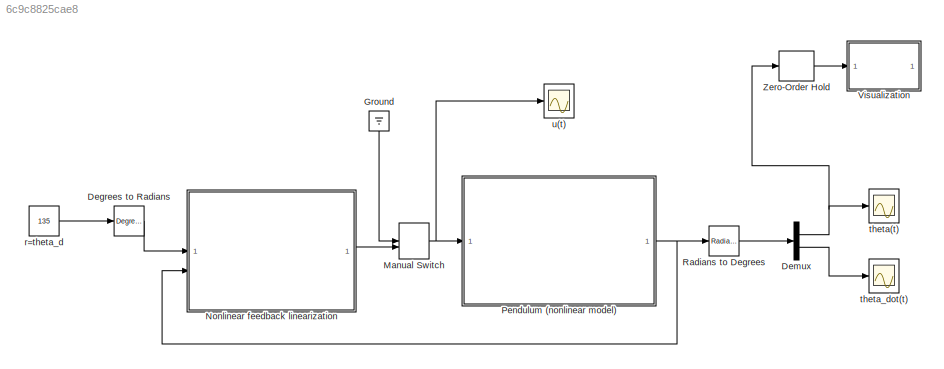
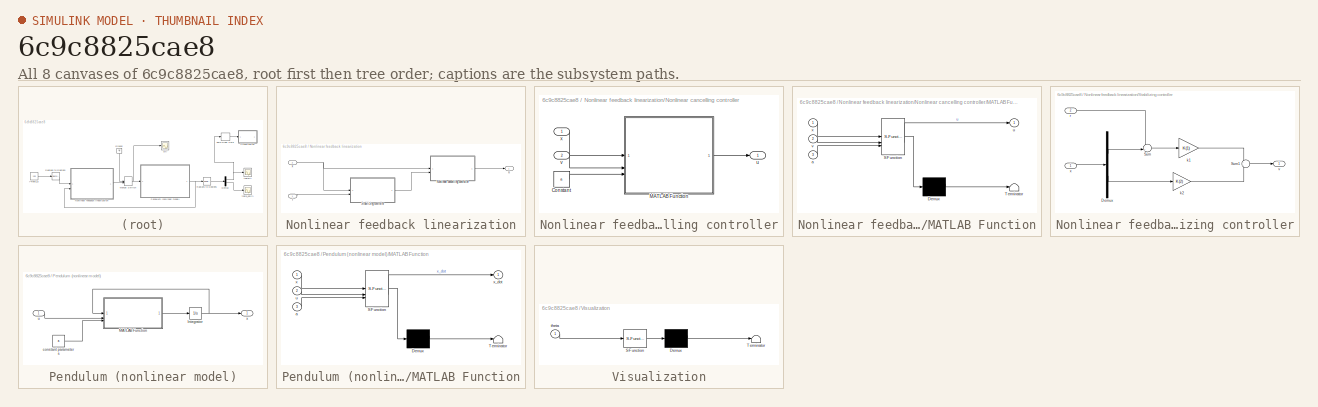
[diagram: thumbnail index - all 8 canvases of the model, root first then tree order]
MODEL slx_6c9c8825cae8
KIND model
CONFIG AbsTol = auto
CONFIG EnableMultiTasking = off
CONFIG FixedStep = 0.01
CONFIG MaxStep = auto
CONFIG MinStep = auto
CONFIG RelTol = 1e-3
CONFIG SampleTimeConstraint = Unconstrained
CONFIG SolverName = ode3
CONFIG StartTime = 0.0
CONFIG StopTime = 20
BLOCK [Reference] Degrees to Radians  REF=simulink_extras/Transformations/Degrees to
Radians
  SourceBlock = simulink_extras/Transformations/Degrees to\nRadians
  SourceType = DegreesToRadians
BLOCK [Demux] Demux
  Outputs = 2
BLOCK [Ground] Ground
  NameLocation = left
BLOCK [ManualSwitch] Manual Switch
BLOCK [SubSystem] Nonlinear feedback linearization
BLOCK [SubSystem] Nonlinear feedback linearization/Nonlinear cancelling controller
BLOCK [Constant] Nonlinear feedback linearization/Nonlinear cancelling controller/Constant
  Value = a
  VectorParams1D = off
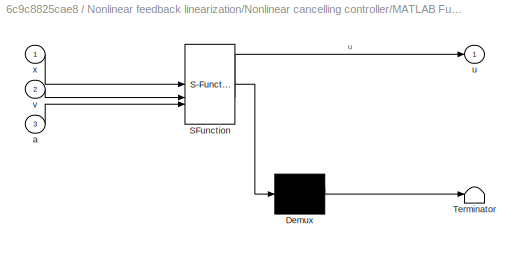
BLOCK [SubSystem] Nonlinear feedback linearization/Nonlinear cancelling controller/MATLAB Function
  ErrorFcn = Stateflow.Translate.translate
  PermitHierarchicalResolution = ExplicitOnly
  SFBlockType = MATLAB Function
  TreatAsAtomicUnit = on
BLOCK [Demux] Nonlinear feedback linearization/Nonlinear cancelling controller/MATLAB Function/ Demux 
  Outputs = 1
BLOCK [S-Function] Nonlinear feedback linearization/Nonlinear cancelling controller/MATLAB Function/ SFunction 
  EnableBusSupport = on
  FunctionName = sf_sfun
  PortCounts = [3 2]
  SFcnIsStateOwnerBlock = off
  SFunctionDeploymentMode = off
  Tag = Stateflow S-Function 1
BLOCK [Terminator] Nonlinear feedback linearization/Nonlinear cancelling controller/MATLAB Function/ Terminator 
BLOCK [Inport] Nonlinear feedback linearization/Nonlinear cancelling controller/MATLAB Function/a
  Port = 3
BLOCK [Outport] Nonlinear feedback linearization/Nonlinear cancelling controller/MATLAB Function/u
BLOCK [Inport] Nonlinear feedback linearization/Nonlinear cancelling controller/MATLAB Function/v
  Port = 2
BLOCK [Inport] Nonlinear feedback linearization/Nonlinear cancelling controller/MATLAB Function/x
BLOCK [Outport] Nonlinear feedback linearization/Nonlinear cancelling controller/u
BLOCK [Inport] Nonlinear feedback linearization/Nonlinear cancelling controller/v
  Port = 2
BLOCK [Inport] Nonlinear feedback linearization/Nonlinear cancelling controller/x
BLOCK [SubSystem] Nonlinear feedback linearization/Stabilizing controller
BLOCK [Demux] Nonlinear feedback linearization/Stabilizing controller/Demux
  Outputs = 2
BLOCK [Sum] Nonlinear feedback linearization/Stabilizing controller/Sum
  Inputs = -+|
BLOCK [Sum] Nonlinear feedback linearization/Stabilizing controller/Sum1
  Inputs = --
BLOCK [Gain] Nonlinear feedback linearization/Stabilizing controller/k1
  Gain = K(1)
BLOCK [Gain] Nonlinear feedback linearization/Stabilizing controller/k2
  Gain = K(2)
BLOCK [Inport] Nonlinear feedback linearization/Stabilizing controller/r
  Port = 2
BLOCK [Outport] Nonlinear feedback linearization/Stabilizing controller/v
BLOCK [Inport] Nonlinear feedback linearization/Stabilizing controller/x
BLOCK [Inport] Nonlinear feedback linearization/r
BLOCK [Outport] Nonlinear feedback linearization/u
BLOCK [Inport] Nonlinear feedback linearization/x
  Port = 2
BLOCK [SubSystem] Pendulum (nonlinear model)
BLOCK [Integrator] Pendulum (nonlinear model)/Integrator
  InitialCondition = [-pi/3;0]
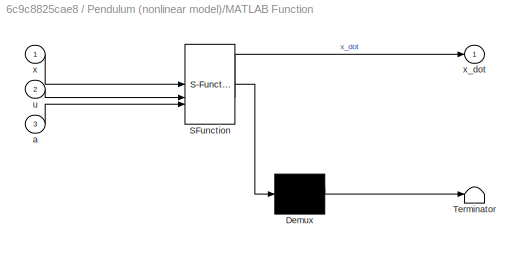
BLOCK [SubSystem] Pendulum (nonlinear model)/MATLAB Function
  ErrorFcn = Stateflow.Translate.translate
  PermitHierarchicalResolution = ExplicitOnly
  SFBlockType = MATLAB Function
  TreatAsAtomicUnit = on
BLOCK [Demux] Pendulum (nonlinear model)/MATLAB Function/ Demux 
  Outputs = 1
BLOCK [S-Function] Pendulum (nonlinear model)/MATLAB Function/ SFunction 
  EnableBusSupport = on
  FunctionName = sf_sfun
  PortCounts = [3 2]
  SFcnIsStateOwnerBlock = off
  SFunctionDeploymentMode = off
  Tag = Stateflow S-Function 2
BLOCK [Terminator] Pendulum (nonlinear model)/MATLAB Function/ Terminator 
BLOCK [Inport] Pendulum (nonlinear model)/MATLAB Function/a
  Port = 3
BLOCK [Inport] Pendulum (nonlinear model)/MATLAB Function/u
  Port = 2
BLOCK [Inport] Pendulum (nonlinear model)/MATLAB Function/x
BLOCK [Outport] Pendulum (nonlinear model)/MATLAB Function/x_dot
BLOCK [Constant] Pendulum (nonlinear model)/constant parameters
  Value = a
  VectorParams1D = off
BLOCK [Inport] Pendulum (nonlinear model)/u
BLOCK [Outport] Pendulum (nonlinear model)/x
BLOCK [Reference] Radians to Degrees  REF=simulink_extras/Transformations/Radians
to Degrees
  SourceBlock = simulink_extras/Transformations/Radians\nto Degrees
  SourceType = RadiansToDegrees
BLOCK [SubSystem] Visualization
  ErrorFcn = Stateflow.Translate.translate
  PermitHierarchicalResolution = ExplicitOnly
  SFBlockType = MATLAB Function
  TreatAsAtomicUnit = on
BLOCK [Demux] Visualization/ Demux 
  Outputs = 1
BLOCK [S-Function] Visualization/ SFunction 
  EnableBusSupport = on
  FunctionName = sf_sfun
  PortCounts = [1 1]
  SFcnIsStateOwnerBlock = off
  SFunctionDeploymentMode = off
  Tag = Stateflow S-Function 3
BLOCK [Terminator] Visualization/ Terminator 
BLOCK [Inport] Visualization/theta
BLOCK [ZeroOrderHold] Zero-Order Hold
  SampleTime = 0.1
BLOCK [Constant] r=theta_d
  Value = 135
BLOCK [Scope] theta(t)
  Floating = off
  NumInputPorts = 1
  ScopeSpecificationString = Simulink.scopes.TimeScopeBlockCfg('CurrentConfiguration', extmgr.ConfigurationSet(extmgr.Configuration('Core','General UI',true),extmgr.Configuration('Core','Source UI',true),extmgr.Configuration('Sources','WiredSimulink',true),extmgr.Configuration('Visuals','Time Domain',true,'SerializedDisplays',{struct('MinYLimReal','-84.375','MaxYLimReal','159.37499','YLabelReal','','MinYLimMag','0.00000','Max...<+1386ch>
BLOCK [Scope] theta_dot(t)
  Floating = off
  NumInputPorts = 1
  ScopeSpecificationString = Simulink.scopes.TimeScopeBlockCfg('CurrentConfiguration', extmgr.ConfigurationSet(extmgr.Configuration('Core','General UI',true),extmgr.Configuration('Core','Source UI',true),extmgr.Configuration('Sources','WiredSimulink',true,'DataLoggingVariableName','ScopeData1'),extmgr.Configuration('Visuals','Time Domain',true,'SerializedDisplays',{struct('MinYLimReal','-6.20383','MaxYLimReal','55.83447','YLa...<+1401ch>
BLOCK [Scope] u(t)
  Floating = off
  NumInputPorts = 1
  ScopeSpecificationString = Simulink.scopes.TimeScopeBlockCfg('CurrentConfiguration', extmgr.ConfigurationSet(extmgr.Configuration('Core','General UI',true),extmgr.Configuration('Core','Source UI',true),extmgr.Configuration('Sources','WiredSimulink',true,'DataLoggingVariableName','ScopeData1'),extmgr.Configuration('Visuals','Time Domain',true,'SerializedDisplays',{struct('MinYLimReal','50.11203','MaxYLimReal','521.9139','YLa...<+1424ch>
LINE Degrees to Radians:1 -> Nonlinear feedback linearization:1
NET Demux:1 -> Zero-Order Hold:1, theta(t):1
LINE Demux:2 -> theta_dot(t):1
LINE Ground:1 -> Manual Switch:1
NET Manual Switch:1 -> Pendulum (nonlinear model):1, u(t):1
LINE Nonlinear feedback linearization/Nonlinear cancelling controller/Constant:1 -> Nonlinear feedback linearization/Nonlinear cancelling controller/MATLAB Function:3
LINE Nonlinear feedback linearization/Nonlinear cancelling controller/MATLAB Function:1 -> Nonlinear feedback linearization/Nonlinear cancelling controller/u:1
LINE Nonlinear feedback linearization/Nonlinear cancelling controller/v:1 -> Nonlinear feedback linearization/Nonlinear cancelling controller/MATLAB Function:2
LINE Nonlinear feedback linearization/Nonlinear cancelling controller/x:1 -> Nonlinear feedback linearization/Nonlinear cancelling controller/MATLAB Function:1
LINE Nonlinear feedback linearization/Nonlinear cancelling controller:1 -> Nonlinear feedback linearization/u:1
LINE Nonlinear feedback linearization/Stabilizing controller/Demux:1 -> Nonlinear feedback linearization/Stabilizing controller/Sum:2
LINE Nonlinear feedback linearization/Stabilizing controller/Demux:2 -> Nonlinear feedback linearization/Stabilizing controller/k2:1
LINE Nonlinear feedback linearization/Stabilizing controller/Sum1:1 -> Nonlinear feedback linearization/Stabilizing controller/v:1
LINE Nonlinear feedback linearization/Stabilizing controller/Sum:1 -> Nonlinear feedback linearization/Stabilizing controller/k1:1
LINE Nonlinear feedback linearization/Stabilizing controller/k1:1 -> Nonlinear feedback linearization/Stabilizing controller/Sum1:1
LINE Nonlinear feedback linearization/Stabilizing controller/k2:1 -> Nonlinear feedback linearization/Stabilizing controller/Sum1:2
LINE Nonlinear feedback linearization/Stabilizing controller/r:1 -> Nonlinear feedback linearization/Stabilizing controller/Sum:1
LINE Nonlinear feedback linearization/Stabilizing controller/x:1 -> Nonlinear feedback linearization/Stabilizing controller/Demux:1
LINE Nonlinear feedback linearization/Stabilizing controller:1 -> Nonlinear feedback linearization/Nonlinear cancelling controller:2
LINE Nonlinear feedback linearization/r:1 -> Nonlinear feedback linearization/Stabilizing controller:2
NET Nonlinear feedback linearization/x:1 -> Nonlinear feedback linearization/Nonlinear cancelling controller:1, Nonlinear feedback linearization/Stabilizing controller:1
LINE Nonlinear feedback linearization:1 -> Manual Switch:2
NET Pendulum (nonlinear model)/Integrator:1 -> Pendulum (nonlinear model)/MATLAB Function:1, Pendulum (nonlinear model)/x:1
LINE Pendulum (nonlinear model)/MATLAB Function:1 -> Pendulum (nonlinear model)/Integrator:1
LINE Pendulum (nonlinear model)/constant parameters:1 -> Pendulum (nonlinear model)/MATLAB Function:3
LINE Pendulum (nonlinear model)/u:1 -> Pendulum (nonlinear model)/MATLAB Function:2
NET Pendulum (nonlinear model):1 -> Nonlinear feedback linearization:2, Radians to Degrees:1
LINE Radians to Degrees:1 -> Demux:1
LINE Zero-Order Hold:1 -> Visualization:1
LINE r=theta_d:1 -> Degrees to Radians:1
note: NET lines group one-source signal fan-out (src -> all destinations, sorted); 1:1 wires keep LINE
CHART Nonlinear feedback linearization/Nonlinear cancelling controller/MATLAB Function states=1 transitions=1
  STATE_LABEL 'eML_blk_kernel()'
  STATE_LABEL 'SCRIPT:\nfunction u = c_lin(x,v,a)\n\n% a is the vector of constant parameters\nm = a(1);\ng = a(2);\nl = a(3);\nd = a(4);\n\n% cancelling controller\nu = m*g*l*sin(x(1)) + d*x(2) + m*l^2*v;\n\n\n'
CHART Pendulum (nonlinear model)/MATLAB Function states=1 transitions=1
  STATE_LABEL 'eML_blk_kernel()'
  STATE_LABEL 'SCRIPT:\nfunction x_dot = f(x,u,a)\n\n% a is the vector of constant parameters\nm = a(1);\ng = a(2);\nl = a(3);\nd = a(4);\n\nx_dot = [ x(2) ; 1/(m*l^2)*(-m*g*l*sin(x(1))-d*x(2)+u) ];\n'
CHART Visualization states=1 transitions=1
  STATE_LABEL 'eML_blk_kernel()'
  STATE_LABEL "SCRIPT:\nfunction fcn(theta)\n\n\n% body\n    Ybody = [ -1 ; -1 ; 0.1 ; 0.1 ];\n    Xbody = [ -0.1 ; 0.1 ; 0.1 ; -0.1 ]; \n\n% calculate graphical position of 2-wheel robot\n      [PosXbody,PosYbody] = rot(Xbody,Ybody,deg2rad(theta));\n      \n\n% to be able to use 'fill' even though the function is not supported for code generation\n% see https://se.mathworks.com/help/simulink/slref/coder.extrinsic.html\ncoder...<+569ch>"
CHART  states=0 transitions=0
CHART  states=0 transitions=0
CHART  states=0 transitions=0
